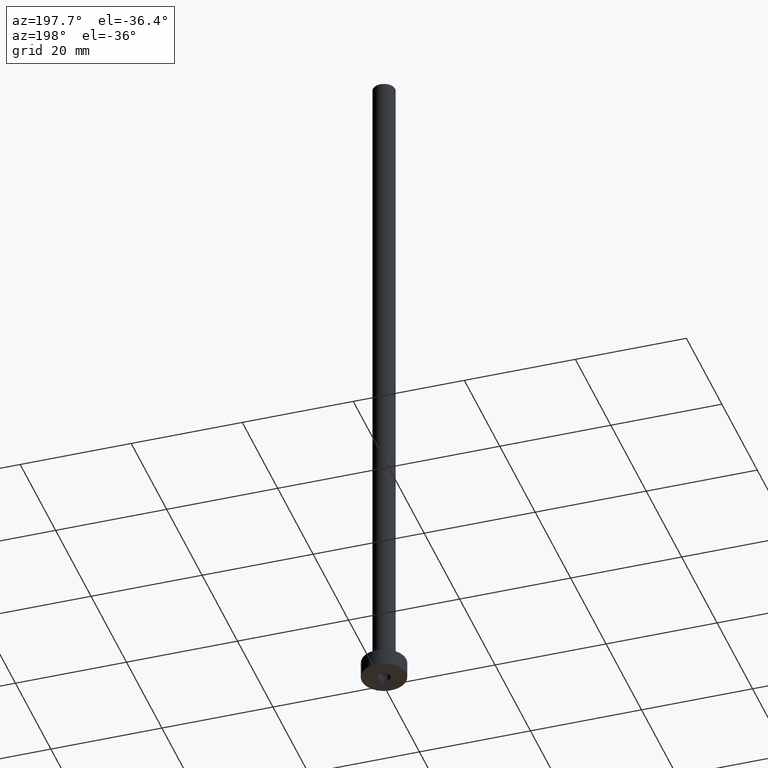
[diagram: clean part render]
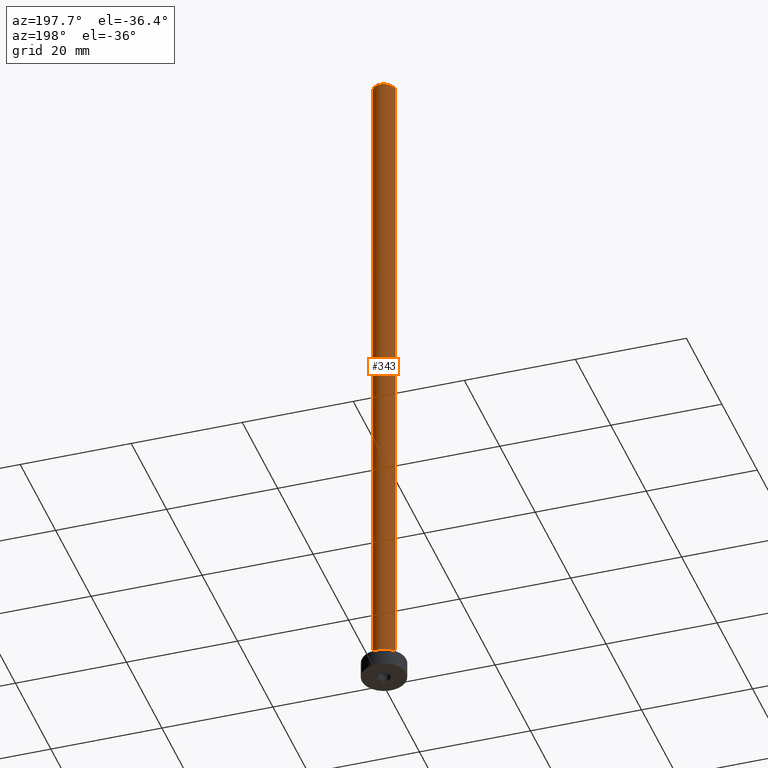
[diagram: same view with one face highlighted and labeled with its STEP entity id]
A machine part, auxiliary view. The second image highlights one B-rep face of the part: STEP entity #343.
In plain terms, the highlighted cylindrical surface (edge-blend (fillet) strip) has radius 2 mm, axis along (-0, -0, -1).
Its self-contained STEP definition (entity closure, byte-faithful):
#10 = VERTEX_POINT ( 'NONE', #453 ) ;
#16 = EDGE_CURVE ( 'NONE', #295, #112, #86, .T. ) ;
#24 = DIRECTION ( 'NONE',  ( 0.000000000000000000, 0.000000000000000000, 1.000000000000000000 ) ) ;
#31 = DIRECTION ( 'NONE',  ( -0.000000000000000000, -0.000000000000000000, -1.000000000000000000 ) ) ;
#35 = CARTESIAN_POINT ( 'NONE',  ( 0.000000000000000000, 0.000000000000000000, 3.299999999999997158 ) ) ;
#38 = CARTESIAN_POINT ( 'NONE',  ( -2.000000000000000000, 0.000000000000000000, 3.299999999999997158 ) ) ;
#46 = VERTEX_POINT ( 'NONE', #230 ) ;
#48 = CARTESIAN_POINT ( 'NONE',  ( 0.000000000000000000, 0.000000000000000000, 125.0000000000000000 ) ) ;
#52 = CARTESIAN_POINT ( 'NONE',  ( -2.000000000000000000, 0.000000000000000000, 125.0000000000000000 ) ) ;
#71 = CIRCLE ( 'NONE', #158, 2.000000000000000000 ) ;
#86 = LINE ( 'NONE', #370, #361 ) ;
#87 = EDGE_CURVE ( 'NONE', #46, #112, #379, .T. ) ;
#96 = DIRECTION ( 'NONE',  ( 0.000000000000000000, 0.000000000000000000, 1.000000000000000000 ) ) ;
#112 = VERTEX_POINT ( 'NONE', #38 ) ;
#117 = CARTESIAN_POINT ( 'NONE',  ( 0.000000000000000000, 0.000000000000000000, 125.0000000000000000 ) ) ;
#158 = AXIS2_PLACEMENT_3D ( 'NONE', #117, #24, #225 ) ;
#173 = AXIS2_PLACEMENT_3D ( 'NONE', #35, #96, #235 ) ;
#184 = FACE_OUTER_BOUND ( 'NONE', #438, .T. ) ;
#225 = DIRECTION ( 'NONE',  ( 1.000000000000000000, 0.000000000000000000, 0.000000000000000000 ) ) ;
#230 = CARTESIAN_POINT ( 'NONE',  ( 2.000000000000000000, 2.449293598294705921E-16, 3.299999999999997158 ) ) ;
#235 = DIRECTION ( 'NONE',  ( 1.000000000000000000, 0.000000000000000000, 0.000000000000000000 ) ) ;
#252 = ORIENTED_EDGE ( 'NONE', *, *, #440, .F. ) ;
#293 = CARTESIAN_POINT ( 'NONE',  ( 2.000000000000000000, 2.449293598294705921E-16, 125.0000000000000000 ) ) ;
#295 = VERTEX_POINT ( 'NONE', #52 ) ;
#312 = AXIS2_PLACEMENT_3D ( 'NONE', #48, #397, #332 ) ;
#325 = LINE ( 'NONE', #293, #426 ) ;
#332 = DIRECTION ( 'NONE',  ( -1.000000000000000000, 0.000000000000000000, 0.000000000000000000 ) ) ;
#343 = ADVANCED_FACE ( 'NONE', ( #184 ), #362, .T. ) ;
#361 = VECTOR ( 'NONE', #31, 1000.000000000000000 ) ;
#362 = CYLINDRICAL_SURFACE ( 'NONE', #312, 2.000000000000000000 ) ;
#370 = CARTESIAN_POINT ( 'NONE',  ( -2.000000000000000000, 0.000000000000000000, 125.0000000000000000 ) ) ;
#375 = ORIENTED_EDGE ( 'NONE', *, *, #16, .F. ) ;
#379 = CIRCLE ( 'NONE', #173, 2.000000000000000000 ) ;
#395 = ORIENTED_EDGE ( 'NONE', *, *, #405, .T. ) ;
#397 = DIRECTION ( 'NONE',  ( -0.000000000000000000, -0.000000000000000000, -1.000000000000000000 ) ) ;
#398 = ORIENTED_EDGE ( 'NONE', *, *, #87, .T. ) ;
#405 = EDGE_CURVE ( 'NONE', #10, #46, #325, .T. ) ;
#426 = VECTOR ( 'NONE', #435, 1000.000000000000000 ) ;
#435 = DIRECTION ( 'NONE',  ( -0.000000000000000000, -0.000000000000000000, -1.000000000000000000 ) ) ;
#438 = EDGE_LOOP ( 'NONE', ( #252, #395, #398, #375 ) ) ;
#440 = EDGE_CURVE ( 'NONE', #10, #295, #71, .T. ) ;
#453 = CARTESIAN_POINT ( 'NONE',  ( 2.000000000000000000, 2.449293598294705921E-16, 125.0000000000000000 ) ) ;